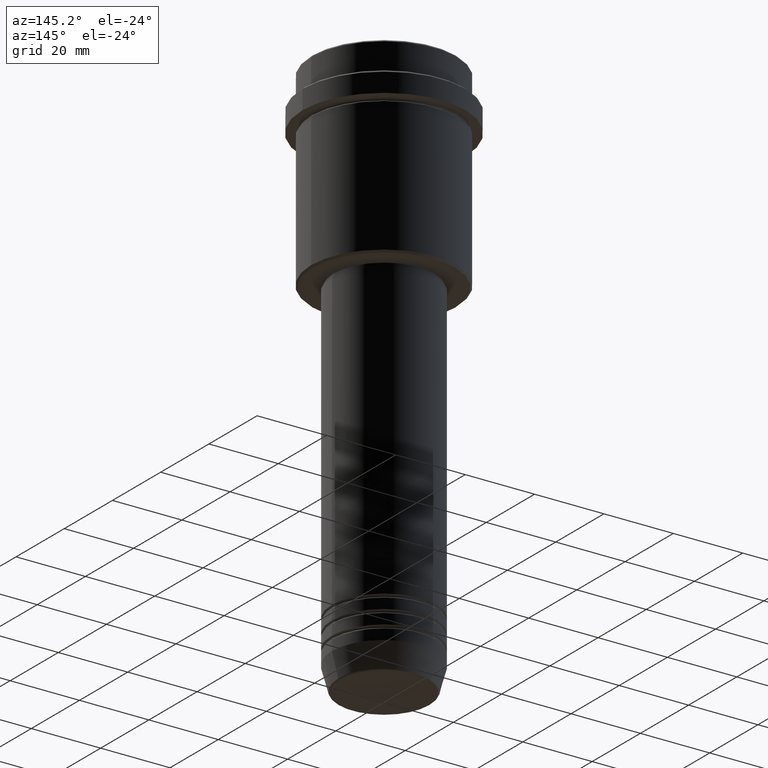
[diagram: clean part render]
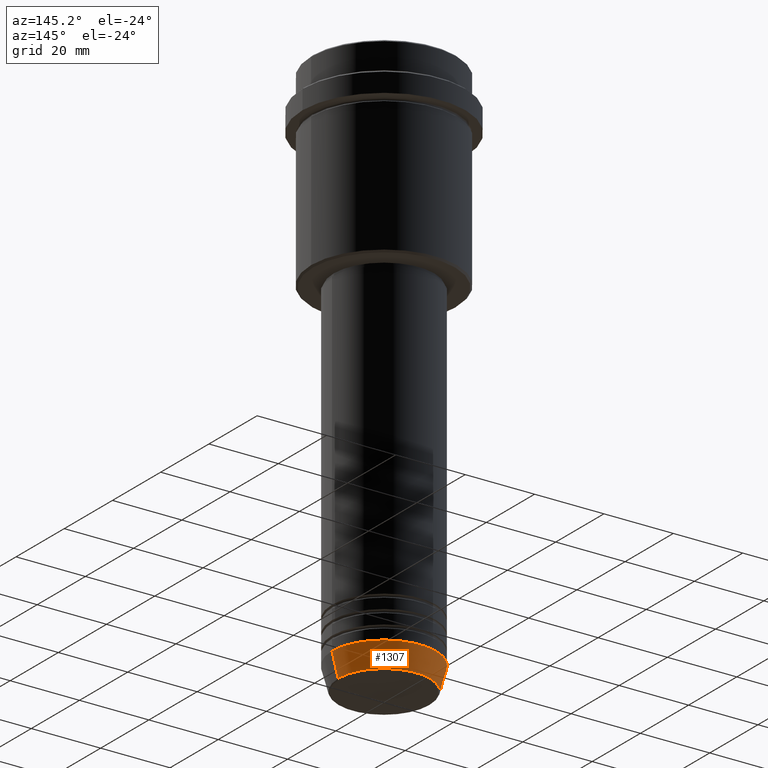
[diagram: same view with one face highlighted and labeled with its STEP entity id]
A machine part, auxiliary view. The second image highlights one B-rep face of the part: STEP entity #1307.
In plain terms, the highlighted conical surface has half-angle 15 deg.
Its self-contained STEP definition (entity closure, byte-faithful):
#107 = CARTESIAN_POINT ( 'NONE',  ( 15.00000000000000000, 0.000000000000000000, -153.0000000000000000 ) ) ;
#186 = VECTOR ( 'NONE', #537, 1000.000000000000000 ) ;
#189 = FACE_OUTER_BOUND ( 'NONE', #996, .T. ) ;
#205 = CARTESIAN_POINT ( 'NONE',  ( 0.000000000000000000, 0.000000000000000000, -153.0000000000000000 ) ) ;
#266 = EDGE_CURVE ( 'NONE', #702, #509, #481, .T. ) ;
#267 = DIRECTION ( 'NONE',  ( -0.000000000000000000, -0.000000000000000000, 1.000000000000000000 ) ) ;
#307 = DIRECTION ( 'NONE',  ( 1.000000000000000000, 0.000000000000000000, 0.000000000000000000 ) ) ;
#316 = DIRECTION ( 'NONE',  ( 1.000000000000000000, 0.000000000000000000, 0.000000000000000000 ) ) ;
#366 = AXIS2_PLACEMENT_3D ( 'NONE', #205, #1296, #316 ) ;
#367 = CONICAL_SURFACE ( 'NONE', #1153, 15.00000000000000000, 0.2617993877991500740 ) ;
#440 = VERTEX_POINT ( 'NONE', #1071 ) ;
#481 = LINE ( 'NONE', #683, #1191 ) ;
#509 = VERTEX_POINT ( 'NONE', #758 ) ;
#537 = DIRECTION ( 'NONE',  ( 0.2588190451025213501, 0.000000000000000000, 0.9659258262890680902 ) ) ;
#582 = EDGE_CURVE ( 'NONE', #440, #509, #1009, .T. ) ;
#603 = EDGE_CURVE ( 'NONE', #712, #702, #708, .T. ) ;
#656 = ORIENTED_EDGE ( 'NONE', *, *, #582, .F. ) ;
#676 = CARTESIAN_POINT ( 'NONE',  ( 0.000000000000000000, 0.000000000000000000, -159.6294095225512137 ) ) ;
#683 = CARTESIAN_POINT ( 'NONE',  ( -15.00000000000000000, 1.836970198721029589E-15, -153.0000000000000000 ) ) ;
#684 = AXIS2_PLACEMENT_3D ( 'NONE', #676, #267, #1344 ) ;
#702 = VERTEX_POINT ( 'NONE', #1138 ) ;
#708 = CIRCLE ( 'NONE', #684, 13.22365507213719305 ) ;
#712 = VERTEX_POINT ( 'NONE', #1130 ) ;
#758 = CARTESIAN_POINT ( 'NONE',  ( -15.00000000000000000, 1.836970198721029589E-15, -153.0000000000000000 ) ) ;
#830 = ORIENTED_EDGE ( 'NONE', *, *, #943, .F. ) ;
#831 = CARTESIAN_POINT ( 'NONE',  ( 0.000000000000000000, 0.000000000000000000, -153.0000000000000000 ) ) ;
#880 = LINE ( 'NONE', #107, #186 ) ;
#916 = DIRECTION ( 'NONE',  ( -0.2588190451025213501, 3.169619151431772337E-17, 0.9659258262890680902 ) ) ;
#943 = EDGE_CURVE ( 'NONE', #712, #440, #880, .T. ) ;
#996 = EDGE_LOOP ( 'NONE', ( #1026, #1309, #656, #830 ) ) ;
#1009 = CIRCLE ( 'NONE', #366, 15.00000000000000000 ) ;
#1026 = ORIENTED_EDGE ( 'NONE', *, *, #603, .T. ) ;
#1056 = DIRECTION ( 'NONE',  ( -0.000000000000000000, -0.000000000000000000, 1.000000000000000000 ) ) ;
#1071 = CARTESIAN_POINT ( 'NONE',  ( 15.00000000000000000, 0.000000000000000000, -153.0000000000000000 ) ) ;
#1130 = CARTESIAN_POINT ( 'NONE',  ( 13.22365507213719305, 0.000000000000000000, -159.6294095225512137 ) ) ;
#1138 = CARTESIAN_POINT ( 'NONE',  ( -13.22365507213719305, 1.728200442216588583E-15, -159.6294095225512137 ) ) ;
#1153 = AXIS2_PLACEMENT_3D ( 'NONE', #831, #1056, #307 ) ;
#1191 = VECTOR ( 'NONE', #916, 1000.000000000000000 ) ;
#1296 = DIRECTION ( 'NONE',  ( -0.000000000000000000, -0.000000000000000000, 1.000000000000000000 ) ) ;
#1307 = ADVANCED_FACE ( 'NONE', ( #189 ), #367, .T. ) ;
#1309 = ORIENTED_EDGE ( 'NONE', *, *, #266, .T. ) ;
#1344 = DIRECTION ( 'NONE',  ( 1.000000000000000000, 0.000000000000000000, 0.000000000000000000 ) ) ;